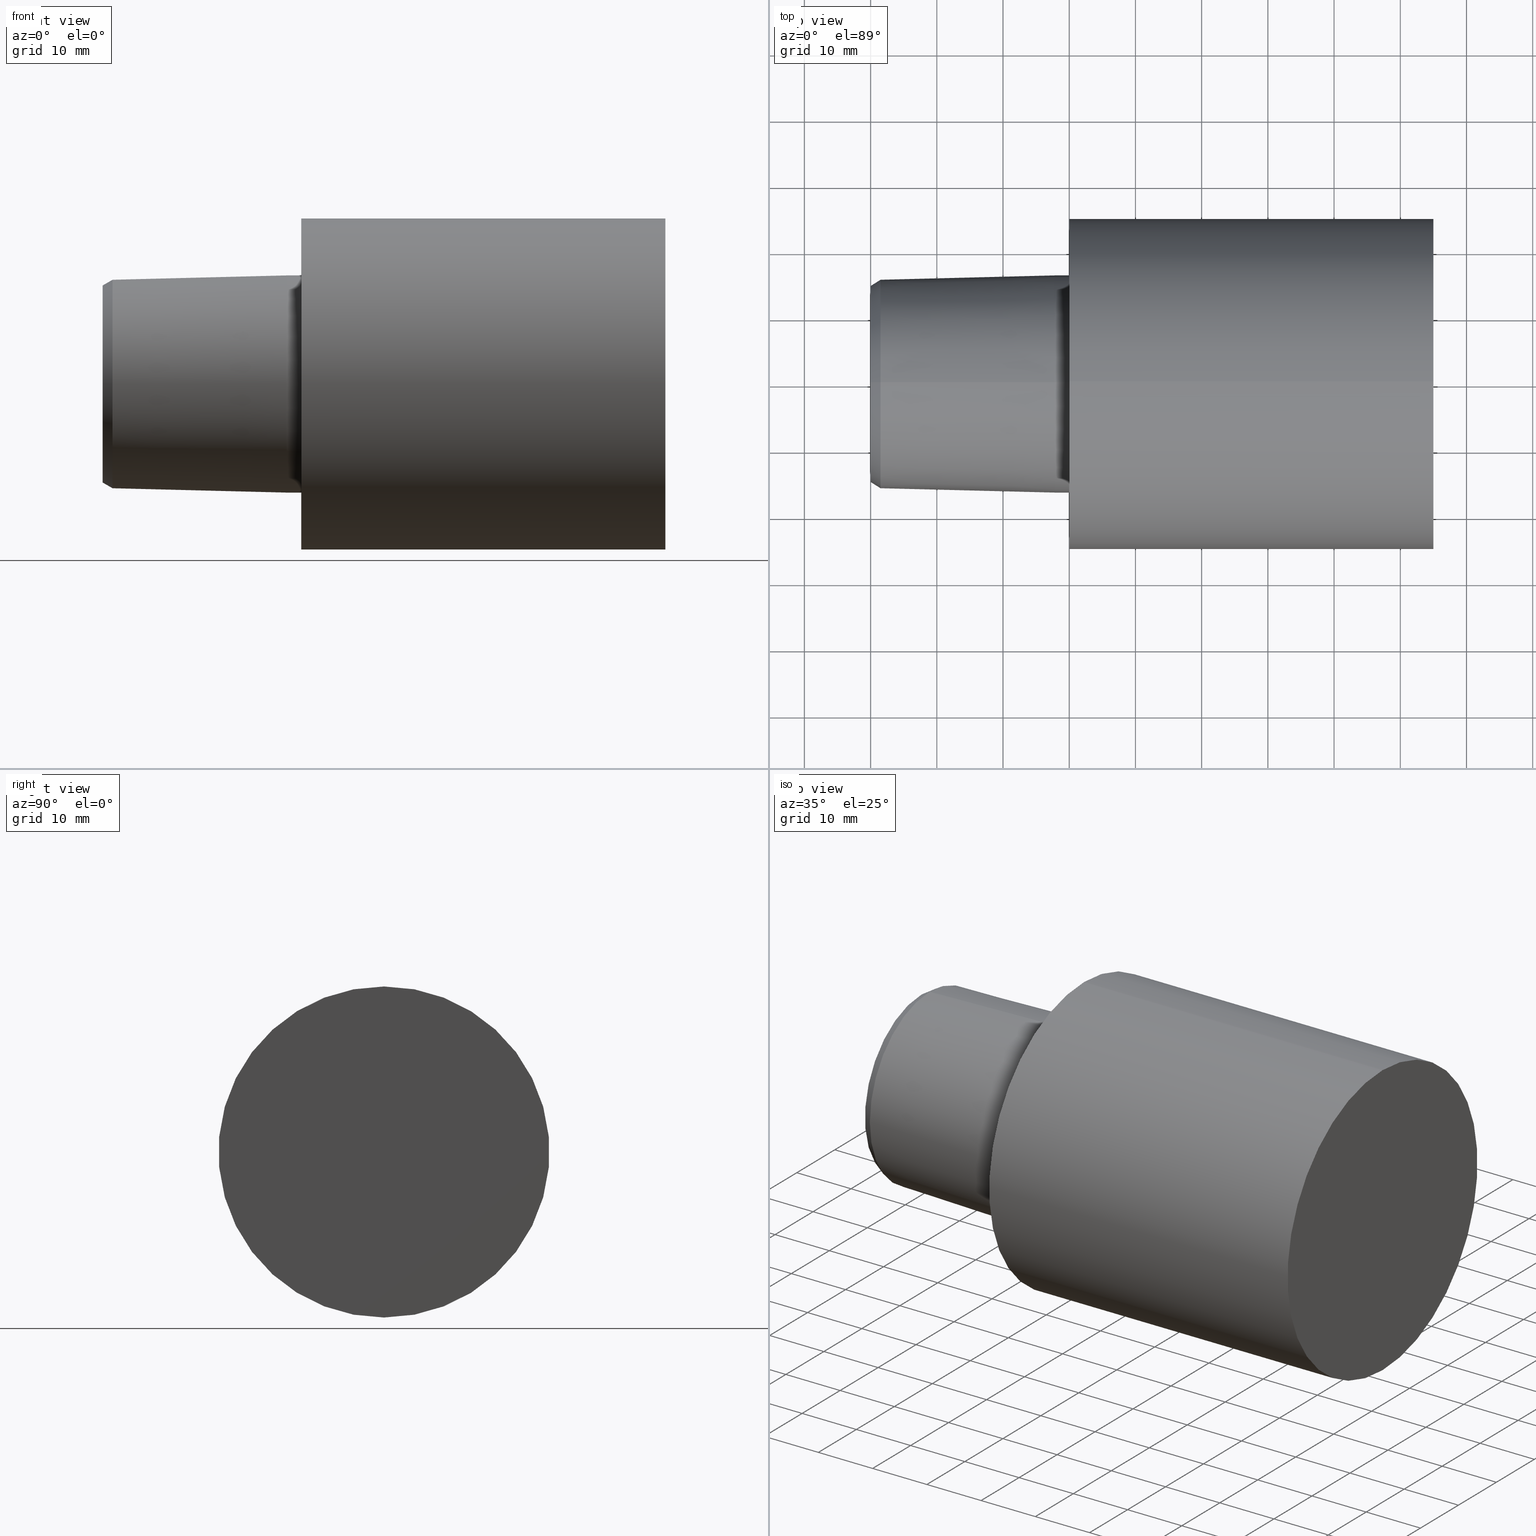
[diagram: canonical four-view strip — front | top / right | iso, engineering-drawing reading convention]
A machine part, canonical four-view strip (front | top / right | iso — engineering-drawing reading convention). The complete STEP part file that produces these views, byte-faithful:
ISO-10303-21;
HEADER;
FILE_DESCRIPTION (( 'STEP AP203' ),
    '1' );
FILE_NAME ('C5-S50-55.stp',
    '2022-03-11T15:29:14',
    ( '' ),
    ( '' ),
    'SwSTEP 2.0',
    'SolidWorks 2021',
    '' );
FILE_SCHEMA (( 'CONFIG_CONTROL_DESIGN' ));
ENDSEC;

DATA;
#1 = CC_DESIGN_PERSON_AND_ORGANIZATION_ASSIGNMENT ( #89, #285, ( #104 ) ) ;
#2 = FACE_OUTER_BOUND ( 'NONE', #256, .T. ) ;
#3 = PRODUCT ( 'C5-S50-55', 'C5-S50-55', '', ( #239 ) ) ;
#4 = LINE ( 'NONE', #271, #139 ) ;
#5 = DIRECTION ( 'NONE',  ( 0.000000000000000000, 0.000000000000000000, -1.000000000000000000 ) ) ;
#6 = CARTESIAN_POINT ( 'NONE',  ( 0.000000000000000000, 0.000000000000000000, -24.99999997449999967 ) ) ;
#7 = CARTESIAN_POINT ( 'NONE',  ( -29.99999996776130118, 1.874864587049208810E-15, 14.87641846198772733 ) ) ;
#8 = EDGE_CURVE ( 'NONE', #345, #283, #96, .T. ) ;
#9 = APPROVAL_STATUS ( 'not_yet_approved' ) ;
#10 = DESIGN_CONTEXT ( 'detailed design', #156, 'design' ) ;
#11 = AXIS2_PLACEMENT_3D ( 'NONE', #48, #258, #92 ) ;
#12 = COORDINATED_UNIVERSAL_TIME_OFFSET ( 6, 0, .BEHIND. ) ;
#13 = FACE_OUTER_BOUND ( 'NONE', #94, .T. ) ;
#14 = VECTOR ( 'NONE', #110, 1000.000000000000000 ) ;
#15 = DIRECTION ( 'NONE',  ( 1.000000000000000000, 0.000000000000000000, 0.000000000000000000 ) ) ;
#16 = CARTESIAN_POINT ( 'NONE',  ( -2.199937517756059613, 0.000000000000000000, -16.40000330327199762 ) ) ;
#17 = ORIENTED_EDGE ( 'NONE', *, *, #52, .F. ) ;
#18 = AXIS2_PLACEMENT_3D ( 'NONE', #56, #154, #50 ) ;
#19 = DIRECTION ( 'NONE',  ( 0.000000000000000000, 0.000000000000000000, -1.000000000000000000 ) ) ;
#20 = ORIENTED_EDGE ( 'NONE', *, *, #201, .T. ) ;
#21 = DIRECTION ( 'NONE',  ( 1.000000000000000000, 0.000000000000000000, 0.000000000000000000 ) ) ;
#22 = DIRECTION ( 'NONE',  ( 1.000000000000000000, 0.000000000000000000, 0.000000000000000000 ) ) ;
#23 = CC_DESIGN_PERSON_AND_ORGANIZATION_ASSIGNMENT ( #307, #257, ( #102 ) ) ;
#24 = AXIS2_PLACEMENT_3D ( 'NONE', #281, #313, #116 ) ;
#25 = CARTESIAN_POINT ( 'NONE',  ( 54.99999994390000069, 24.99999997449999967, 0.000000000000000000 ) ) ;
#26 = PRODUCT_DEFINITION_SHAPE ( 'NONE', 'NONE',  #104 ) ;
#27 = DIRECTION ( 'NONE',  ( 0.000000000000000000, 0.000000000000000000, -1.000000000000000000 ) ) ;
#28 = VERTEX_POINT ( 'NONE', #129 ) ;
#29 = CYLINDRICAL_SURFACE ( 'NONE', #262, 16.40000330327199762 ) ;
#30 =( LENGTH_UNIT ( ) NAMED_UNIT ( * ) SI_UNIT ( .MILLI., .METRE. ) );
#31 = AXIS2_PLACEMENT_3D ( 'NONE', #228, #292, #346 ) ;
#32 = DIRECTION ( 'NONE',  ( 1.000000000000000000, 0.000000000000000000, 0.000000000000000000 ) ) ;
#33 = CARTESIAN_POINT ( 'NONE',  ( -28.49999997092999848, 0.000000000000000000, 0.000000000000000000 ) ) ;
#34 = AXIS2_PLACEMENT_3D ( 'NONE', #158, #22, #323 ) ;
#35 = MANIFOLD_SOLID_BREP ( 'Scale1', #270 ) ;
#36 = COORDINATED_UNIVERSAL_TIME_OFFSET ( 6, 0, .BEHIND. ) ;
#37 = DIRECTION ( 'NONE',  ( 0.000000000000000000, 0.000000000000000000, -1.000000000000000000 ) ) ;
#38 = CC_DESIGN_DATE_AND_TIME_ASSIGNMENT ( #315, #43, ( #104 ) ) ;
#39 = VECTOR ( 'NONE', #252, 1000.000000000000000 ) ;
#40 = APPROVAL_ROLE ( '' ) ;
#41 = DIRECTION ( 'NONE',  ( 0.8660254037844387076, 0.000000000000000000, -0.4999999999999998890 ) ) ;
#42 = ORIENTED_EDGE ( 'NONE', *, *, #290, .T. ) ;
#43 = DATE_TIME_ROLE ( 'creation_date' ) ;
#44 = DIRECTION ( 'NONE',  ( 1.000000000000000000, 0.000000000000000000, 0.000000000000000000 ) ) ;
#45 = ORIENTED_EDGE ( 'NONE', *, *, #201, .F. ) ;
#46 = DIRECTION ( 'NONE',  ( 1.000000000000000000, 0.000000000000000000, 0.000000000000000000 ) ) ;
#47 = ORIENTED_EDGE ( 'NONE', *, *, #339, .T. ) ;
#48 = CARTESIAN_POINT ( 'NONE',  ( 54.99999994390000069, 0.000000000000000000, 0.000000000000000000 ) ) ;
#49 = EDGE_LOOP ( 'NONE', ( #321, #123, #172, #225 ) ) ;
#50 = DIRECTION ( 'NONE',  ( 1.000000000000000000, 0.000000000000000000, 0.000000000000000000 ) ) ;
#51 = ORIENTED_EDGE ( 'NONE', *, *, #79, .T. ) ;
#52 = EDGE_CURVE ( 'NONE', #297, #210, #4, .T. ) ;
#53 = CARTESIAN_POINT ( 'NONE',  ( -29.99999996776130118, 0.000000000000000000, 0.000000000000000000 ) ) ;
#54 = CARTESIAN_POINT ( 'NONE',  ( 0.000000000000000000, 0.000000000000000000, 0.000000000000000000 ) ) ;
#55 = AXIS2_PLACEMENT_3D ( 'NONE', #53, #244, #242 ) ;
#56 = CARTESIAN_POINT ( 'NONE',  ( 0.000000000000000000, 0.000000000000000000, 0.000000000000000000 ) ) ;
#57 = VERTEX_POINT ( 'NONE', #151 ) ;
#58 = ADVANCED_FACE ( 'NONE', ( #2 ), #355, .T. ) ;
#59 =( NAMED_UNIT ( * ) PLANE_ANGLE_UNIT ( ) SI_UNIT ( $, .RADIAN. ) );
#60 = AXIS2_PLACEMENT_3D ( 'NONE', #54, #236, #134 ) ;
#61 = CYLINDRICAL_SURFACE ( 'NONE', #322, 24.99999997449999967 ) ;
#62 = AXIS2_PLACEMENT_3D ( 'NONE', #119, #15, #260 ) ;
#63 = ADVANCED_FACE ( 'NONE', ( #83 ), #349, .T. ) ;
#64 = APPLICATION_CONTEXT ( 'configuration controlled 3d designs of mechanical parts and assemblies' ) ;
#65 = DIRECTION ( 'NONE',  ( 0.000000000000000000, 0.000000000000000000, -1.000000000000000000 ) ) ;
#66 = PLANE ( 'NONE',  #24 ) ;
#67 = LOCAL_TIME ( 9, 29, 14.00000000000000000, #12 ) ;
#68 = ADVANCED_FACE ( 'NONE', ( #136 ), #61, .T. ) ;
#69 = CIRCLE ( 'NONE', #336, 15.74244386394270734 ) ;
#70 = CARTESIAN_POINT ( 'NONE',  ( -2.199937517756059613, 0.000000000000000000, -16.40000330327199762 ) ) ;
#71 = VERTEX_POINT ( 'NONE', #108 ) ;
#72 = DIRECTION ( 'NONE',  ( 0.000000000000000000, 0.000000000000000000, -1.000000000000000000 ) ) ;
#73 = LINE ( 'NONE', #16, #235 ) ;
#74 = EDGE_LOOP ( 'NONE', ( #206, #261, #267, #259 ) ) ;
#75 = ORGANIZATION ( 'UNSPECIFIED', 'UNSPECIFIED', '' ) ;
#76 = CIRCLE ( 'NONE', #55, 14.87641846198772733 ) ;
#77 = EDGE_CURVE ( 'NONE', #160, #57, #299, .T. ) ;
#78 = EDGE_LOOP ( 'NONE', ( #294, #289 ) ) ;
#79 = EDGE_CURVE ( 'NONE', #283, #118, #265, .T. ) ;
#80 = LOCAL_TIME ( 9, 29, 14.00000000000000000, #114 ) ;
#81 = PERSON_AND_ORGANIZATION_ROLE ( 'design_owner' ) ;
#82 = VERTEX_POINT ( 'NONE', #7 ) ;
#83 = FACE_OUTER_BOUND ( 'NONE', #49, .T. ) ;
#84 = FACE_OUTER_BOUND ( 'NONE', #78, .T. ) ;
#85 = AXIS2_PLACEMENT_3D ( 'NONE', #202, #316, #72 ) ;
#86 = CC_DESIGN_PERSON_AND_ORGANIZATION_ASSIGNMENT ( #204, #223, ( #161 ) ) ;
#87 = DIRECTION ( 'NONE',  ( -1.000000000000000000, 0.000000000000000000, 0.000000000000000000 ) ) ;
#88 = ADVANCED_FACE ( 'NONE', ( #186 ), #29, .T. ) ;
#89 = PERSON_AND_ORGANIZATION ( #109, #75 ) ;
#90 = DATE_AND_TIME ( #280, #211 ) ;
#91 = FACE_OUTER_BOUND ( 'NONE', #317, .T. ) ;
#92 = DIRECTION ( 'NONE',  ( 0.000000000000000000, 0.000000000000000000, -1.000000000000000000 ) ) ;
#93 = LOCAL_TIME ( 9, 29, 14.00000000000000000, #193 ) ;
#94 = EDGE_LOOP ( 'NONE', ( #155, #222 ) ) ;
#95 = CARTESIAN_POINT ( 'NONE',  ( -28.49999997092999848, 1.927893348873434490E-15, 15.74244386394270734 ) ) ;
#96 = CIRCLE ( 'NONE', #60, 24.99999997449999967 ) ;
#97 = APPROVAL_STATUS ( 'not_yet_approved' ) ;
#98 = FACE_OUTER_BOUND ( 'NONE', #241, .T. ) ;
#99 = ORIENTED_EDGE ( 'NONE', *, *, #187, .T. ) ;
#100 = CARTESIAN_POINT ( 'NONE',  ( -28.49999997092999848, 0.000000000000000000, 0.000000000000000000 ) ) ;
#101 = ORIENTED_EDGE ( 'NONE', *, *, #218, .T. ) ;
#102 = SECURITY_CLASSIFICATION ( '', '', #350 ) ;
#103 = AXIS2_PLACEMENT_3D ( 'NONE', #143, #233, #179 ) ;
#104 = PRODUCT_DEFINITION ( 'UNKNOWN', '', #161, #10 ) ;
#105 = ORIENTED_EDGE ( 'NONE', *, *, #187, .F. ) ;
#106 = DIRECTION ( 'NONE',  ( 1.000000000000000000, 0.000000000000000000, 0.000000000000000000 ) ) ;
#107 = CC_DESIGN_DATE_AND_TIME_ASSIGNMENT ( #227, #220, ( #102 ) ) ;
#108 = CARTESIAN_POINT ( 'NONE',  ( 54.99999994390000069, 0.000000000000000000, -24.99999997449999967 ) ) ;
#109 = PERSON ( 'UNSPECIFIED', 'UNSPECIFIED', 'UNSPECIFIED', ('UNSPECIFIED'), ('UNSPECIFIED'), ('UNSPECIFIED') ) ;
#110 = DIRECTION ( 'NONE',  ( 1.000000000000000000, 0.000000000000000000, 0.000000000000000000 ) ) ;
#111 = EDGE_CURVE ( 'NONE', #245, #160, #188, .T. ) ;
#112 = LOCAL_TIME ( 9, 29, 14.00000000000000000, #36 ) ;
#113 = ADVANCED_FACE ( 'NONE', ( #214, #84 ), #189, .T. ) ;
#114 = COORDINATED_UNIVERSAL_TIME_OFFSET ( 6, 0, .BEHIND. ) ;
#115 = APPROVAL_STATUS ( 'not_yet_approved' ) ;
#116 = DIRECTION ( 'NONE',  ( 0.000000000000000000, 0.000000000000000000, 1.000000000000000000 ) ) ;
#117 = AXIS2_PLACEMENT_3D ( 'NONE', #302, #87, #331 ) ;
#118 = VERTEX_POINT ( 'NONE', #277 ) ;
#119 = CARTESIAN_POINT ( 'NONE',  ( 54.99999994390000069, 0.000000000000000000, 0.000000000000000000 ) ) ;
#120 = EDGE_LOOP ( 'NONE', ( #17, #99, #298, #263 ) ) ;
#121 = APPROVAL_ROLE ( '' ) ;
#122 = CARTESIAN_POINT ( 'NONE',  ( 0.000000000000000000, 0.000000000000000000, 0.000000000000000000 ) ) ;
#123 = ORIENTED_EDGE ( 'NONE', *, *, #52, .T. ) ;
#124 = LINE ( 'NONE', #171, #332 ) ;
#125 = ADVANCED_FACE ( 'NONE', ( #338 ), #164, .T. ) ;
#126 = FACE_OUTER_BOUND ( 'NONE', #120, .T. ) ;
#127 = ORIENTED_EDGE ( 'NONE', *, *, #249, .F. ) ;
#128 = LINE ( 'NONE', #295, #311 ) ;
#129 = CARTESIAN_POINT ( 'NONE',  ( -29.99999996776130118, 0.000000000000000000, -14.87641846198772733 ) ) ;
#130 = CIRCLE ( 'NONE', #31, 14.87641846198772733 ) ;
#131 = DIRECTION ( 'NONE',  ( 0.000000000000000000, 1.000000000000000000, 0.000000000000000000 ) ) ;
#132 = AXIS2_PLACEMENT_3D ( 'NONE', #33, #248, #138 ) ;
#133 = CARTESIAN_POINT ( 'NONE',  ( 54.99999994390000069, 3.061616994745535943E-15, 24.99999997449999967 ) ) ;
#134 = DIRECTION ( 'NONE',  ( 0.000000000000000000, 0.000000000000000000, -1.000000000000000000 ) ) ;
#135 = CIRCLE ( 'NONE', #180, 16.40000330327199762 ) ;
#136 = FACE_OUTER_BOUND ( 'NONE', #74, .T. ) ;
#137 = EDGE_CURVE ( 'NONE', #245, #210, #284, .T. ) ;
#138 = DIRECTION ( 'NONE',  ( 0.000000000000000000, 0.000000000000000000, -1.000000000000000000 ) ) ;
#139 = VECTOR ( 'NONE', #329, 999.9999999999998863 ) ;
#140 = PERSON_AND_ORGANIZATION_ROLE ( 'creator' ) ;
#141 = CARTESIAN_POINT ( 'NONE',  ( 0.000000000000000000, 0.000000000000000000, -16.40000330327199762 ) ) ;
#142 = CALENDAR_DATE ( 2022, 11, 3 ) ;
#143 = CARTESIAN_POINT ( 'NONE',  ( 54.99999994390000069, 0.000000000000000000, 0.000000000000000000 ) ) ;
#144 = ORIENTED_EDGE ( 'NONE', *, *, #163, .T. ) ;
#145 = PERSON_AND_ORGANIZATION ( #109, #75 ) ;
#146 = CARTESIAN_POINT ( 'NONE',  ( -2.199937517756059613, 0.000000000000000000, 0.000000000000000000 ) ) ;
#147 = CARTESIAN_POINT ( 'NONE',  ( -28.49999997092999848, 0.000000000000000000, -15.74244386394270734 ) ) ;
#148 = DIRECTION ( 'NONE',  ( 0.9996875914402667540, 0.000000000000000000, -0.02499438977767824352 ) ) ;
#149 = ORIENTED_EDGE ( 'NONE', *, *, #334, .F. ) ;
#150 = CARTESIAN_POINT ( 'NONE',  ( 54.99999994390000069, 0.000000000000000000, 0.000000000000000000 ) ) ;
#151 = CARTESIAN_POINT ( 'NONE',  ( 0.000000000000000000, 2.008421155135807723E-15, 16.40000330327199762 ) ) ;
#152 = CC_DESIGN_APPROVAL ( #153, ( #161 ) ) ;
#153 = APPROVAL ( #115, 'UNSPECIFIED' ) ;
#154 = DIRECTION ( 'NONE',  ( 0.000000000000000000, 0.000000000000000000, 1.000000000000000000 ) ) ;
#155 = ORIENTED_EDGE ( 'NONE', *, *, #290, .F. ) ;
#156 = APPLICATION_CONTEXT ( 'configuration controlled 3d designs of mechanical parts and assemblies' ) ;
#157 = PERSON_AND_ORGANIZATION ( #109, #75 ) ;
#158 = CARTESIAN_POINT ( 'NONE',  ( 0.000000000000000000, 0.000000000000000000, 0.000000000000000000 ) ) ;
#159 = ADVANCED_FACE ( 'NONE', ( #126 ), #305, .T. ) ;
#160 = VERTEX_POINT ( 'NONE', #141 ) ;
#161 = PRODUCT_DEFINITION_FORMATION_WITH_SPECIFIED_SOURCE ( 'ANY', '', #3, .NOT_KNOWN. ) ;
#162 = CIRCLE ( 'NONE', #103, 24.99999997449999967 ) ;
#163 = EDGE_CURVE ( 'NONE', #210, #245, #335, .T. ) ;
#164 = CONICAL_SURFACE ( 'NONE', #132, 15.74244386394270734, 0.5235987755982987046 ) ;
#165 = APPROVAL ( #97, 'UNSPECIFIED' ) ;
#166 = CC_DESIGN_APPROVAL ( #246, ( #102 ) ) ;
#167 = CALENDAR_DATE ( 2022, 11, 3 ) ;
#168 = CYLINDRICAL_SURFACE ( 'NONE', #62, 16.40000330327199762 ) ;
#169 = ADVANCED_FACE ( 'NONE', ( #98 ), #190, .T. ) ;
#170 = APPROVAL_DATE_TIME ( #229, #165 ) ;
#171 = CARTESIAN_POINT ( 'NONE',  ( -28.49999997092999848, 0.000000000000000000, -15.74244386394270734 ) ) ;
#172 = ORIENTED_EDGE ( 'NONE', *, *, #137, .F. ) ;
#173 = FACE_OUTER_BOUND ( 'NONE', #234, .T. ) ;
#174 = AXIS2_PLACEMENT_3D ( 'NONE', #308, #44, #37 ) ;
#175 = ADVANCED_FACE ( 'NONE', ( #91 ), #168, .T. ) ;
#176 = PERSON_AND_ORGANIZATION ( #109, #75 ) ;
#177 = DIRECTION ( 'NONE',  ( 1.000000000000000000, 0.000000000000000000, 0.000000000000000000 ) ) ;
#178 = ORIENTED_EDGE ( 'NONE', *, *, #249, .T. ) ;
#179 = DIRECTION ( 'NONE',  ( 0.000000000000000000, 0.000000000000000000, -1.000000000000000000 ) ) ;
#180 = AXIS2_PLACEMENT_3D ( 'NONE', #122, #46, #65 ) ;
#181 = ORIENTED_EDGE ( 'NONE', *, *, #111, .T. ) ;
#182 = DIRECTION ( 'NONE',  ( 1.000000000000000000, 0.000000000000000000, 0.000000000000000000 ) ) ;
#183 = CC_DESIGN_PERSON_AND_ORGANIZATION_ASSIGNMENT ( #145, #140, ( #161 ) ) ;
#184 = EDGE_LOOP ( 'NONE', ( #45, #144, #181, #347 ) ) ;
#185 = APPLICATION_PROTOCOL_DEFINITION ( 'international standard', 'config_control_design', 1994, #156 ) ;
#186 = FACE_OUTER_BOUND ( 'NONE', #184, .T. ) ;
#187 = EDGE_CURVE ( 'NONE', #297, #319, #69, .T. ) ;
#188 = LINE ( 'NONE', #274, #14 ) ;
#189 = PLANE ( 'NONE',  #117 ) ;
#190 = CONICAL_SURFACE ( 'NONE', #275, 15.74244386394270734, 0.5235987755982987046 ) ;
#191 = AXIS2_PLACEMENT_3D ( 'NONE', #25, #300, #131 ) ;
#192 = UNCERTAINTY_MEASURE_WITH_UNIT (LENGTH_MEASURE( 1.000000000000000082E-05 ), #30, 'distance_accuracy_value', 'NONE');
#193 = COORDINATED_UNIVERSAL_TIME_OFFSET ( 6, 0, .BEHIND. ) ;
#194 = COORDINATED_UNIVERSAL_TIME_OFFSET ( 6, 0, .BEHIND. ) ;
#195 = LINE ( 'NONE', #255, #39 ) ;
#196 = ORIENTED_EDGE ( 'NONE', *, *, #348, .T. ) ;
#197 = SHAPE_DEFINITION_REPRESENTATION ( #26, #320 ) ;
#198 = AXIS2_PLACEMENT_3D ( 'NONE', #353, #351, #230 ) ;
#199 = DIRECTION ( 'NONE',  ( 0.000000000000000000, 0.000000000000000000, -1.000000000000000000 ) ) ;
#200 = ORIENTED_EDGE ( 'NONE', *, *, #339, .F. ) ;
#201 = EDGE_CURVE ( 'NONE', #210, #57, #195, .T. ) ;
#202 = CARTESIAN_POINT ( 'NONE',  ( 0.000000000000000000, 0.000000000000000000, 0.000000000000000000 ) ) ;
#203 = EDGE_LOOP ( 'NONE', ( #42, #47, #149, #127 ) ) ;
#204 = PERSON_AND_ORGANIZATION ( #109, #75 ) ;
#205 = DIRECTION ( 'NONE',  ( 1.000000000000000000, 0.000000000000000000, 0.000000000000000000 ) ) ;
#206 = ORIENTED_EDGE ( 'NONE', *, *, #79, .F. ) ;
#207 = CC_DESIGN_SECURITY_CLASSIFICATION ( #102, ( #161 ) ) ;
#208 = AXIS2_PLACEMENT_3D ( 'NONE', #318, #182, #27 ) ;
#209 = PERSON_AND_ORGANIZATION ( #109, #75 ) ;
#210 = VERTEX_POINT ( 'NONE', #288 ) ;
#211 = LOCAL_TIME ( 9, 29, 14.00000000000000000, #194 ) ;
#212 = DIRECTION ( 'NONE',  ( 1.000000000000000000, 0.000000000000000000, 0.000000000000000000 ) ) ;
#213 = CC_DESIGN_PERSON_AND_ORGANIZATION_ASSIGNMENT ( #209, #81, ( #3 ) ) ;
#214 = FACE_BOUND ( 'NONE', #253, .T. ) ;
#215 = CIRCLE ( 'NONE', #85, 24.99999997449999967 ) ;
#216 = DIRECTION ( 'NONE',  ( 1.000000000000000000, 0.000000000000000000, 0.000000000000000000 ) ) ;
#217 = AXIS2_PLACEMENT_3D ( 'NONE', #146, #177, #19 ) ;
#218 = EDGE_CURVE ( 'NONE', #57, #160, #135, .T. ) ;
#219 = VECTOR ( 'NONE', #341, 1000.000000000000000 ) ;
#220 = DATE_TIME_ROLE ( 'classification_date' ) ;
#221 = LINE ( 'NONE', #282, #219 ) ;
#222 = ORIENTED_EDGE ( 'NONE', *, *, #348, .F. ) ;
#223 = PERSON_AND_ORGANIZATION_ROLE ( 'design_supplier' ) ;
#224 = CARTESIAN_POINT ( 'NONE',  ( -28.49999997092999848, 0.000000000000000000, 0.000000000000000000 ) ) ;
#225 = ORIENTED_EDGE ( 'NONE', *, *, #279, .F. ) ;
#226 = APPROVAL_PERSON_ORGANIZATION ( #157, #165, #40 ) ;
#227 = DATE_AND_TIME ( #343, #80 ) ;
#228 = CARTESIAN_POINT ( 'NONE',  ( -29.99999996776130118, 0.000000000000000000, 0.000000000000000000 ) ) ;
#229 = DATE_AND_TIME ( #142, #67 ) ;
#230 = DIRECTION ( 'NONE',  ( 0.000000000000000000, 0.000000000000000000, -1.000000000000000000 ) ) ;
#231 = VECTOR ( 'NONE', #326, 1000.000000000000000 ) ;
#232 = ORIENTED_EDGE ( 'NONE', *, *, #137, .T. ) ;
#233 = DIRECTION ( 'NONE',  ( 1.000000000000000000, 0.000000000000000000, 0.000000000000000000 ) ) ;
#234 = EDGE_LOOP ( 'NONE', ( #287, #51, #352, #309 ) ) ;
#235 = VECTOR ( 'NONE', #148, 999.9999999999998863 ) ;
#236 = DIRECTION ( 'NONE',  ( 1.000000000000000000, 0.000000000000000000, 0.000000000000000000 ) ) ;
#237 = DIRECTION ( 'NONE',  ( 0.000000000000000000, 0.000000000000000000, -1.000000000000000000 ) ) ;
#238 = AXIS2_PLACEMENT_3D ( 'NONE', #269, #106, #237 ) ;
#239 = MECHANICAL_CONTEXT ( 'NONE', #64, 'mechanical' ) ;
#240 = ADVANCED_FACE ( 'NONE', ( #13 ), #66, .T. ) ;
#241 = EDGE_LOOP ( 'NONE', ( #200, #196, #178, #105 ) ) ;
#242 = DIRECTION ( 'NONE',  ( 0.000000000000000000, 0.000000000000000000, -1.000000000000000000 ) ) ;
#243 = CARTESIAN_POINT ( 'NONE',  ( 54.99999994390000069, 0.000000000000000000, 0.000000000000000000 ) ) ;
#244 = DIRECTION ( 'NONE',  ( 1.000000000000000000, 0.000000000000000000, 0.000000000000000000 ) ) ;
#245 = VERTEX_POINT ( 'NONE', #70 ) ;
#246 = APPROVAL ( #9, 'UNSPECIFIED' ) ;
#247 = CARTESIAN_POINT ( 'NONE',  ( -2.199937517756059613, 0.000000000000000000, 0.000000000000000000 ) ) ;
#248 = DIRECTION ( 'NONE',  ( 1.000000000000000000, 0.000000000000000000, 0.000000000000000000 ) ) ;
#249 = EDGE_CURVE ( 'NONE', #28, #319, #124, .T. ) ;
#250 = PERSON_AND_ORGANIZATION ( #109, #75 ) ;
#251 = APPROVAL_DATE_TIME ( #90, #153 ) ;
#252 = DIRECTION ( 'NONE',  ( 1.000000000000000000, 0.000000000000000000, 0.000000000000000000 ) ) ;
#253 = EDGE_LOOP ( 'NONE', ( #293, #101 ) ) ;
#254 = AXIS2_PLACEMENT_3D ( 'NONE', #247, #216, #333 ) ;
#255 = CARTESIAN_POINT ( 'NONE',  ( 54.99999994390000069, 2.008421155135807723E-15, 16.40000330327199762 ) ) ;
#256 = EDGE_LOOP ( 'NONE', ( #296, #342 ) ) ;
#257 = PERSON_AND_ORGANIZATION_ROLE ( 'classification_officer' ) ;
#258 = DIRECTION ( 'NONE',  ( 1.000000000000000000, 0.000000000000000000, 0.000000000000000000 ) ) ;
#259 = ORIENTED_EDGE ( 'NONE', *, *, #328, .F. ) ;
#260 = DIRECTION ( 'NONE',  ( 0.000000000000000000, 0.000000000000000000, -1.000000000000000000 ) ) ;
#261 = ORIENTED_EDGE ( 'NONE', *, *, #304, .T. ) ;
#262 = AXIS2_PLACEMENT_3D ( 'NONE', #243, #212, #327 ) ;
#263 = ORIENTED_EDGE ( 'NONE', *, *, #163, .F. ) ;
#264 = EDGE_CURVE ( 'NONE', #345, #71, #221, .T. ) ;
#265 = LINE ( 'NONE', #133, #231 ) ;
#266 = CIRCLE ( 'NONE', #208, 15.74244386394270734 ) ;
#267 = ORIENTED_EDGE ( 'NONE', *, *, #264, .T. ) ;
#268 = APPLICATION_PROTOCOL_DEFINITION ( 'international standard', 'config_control_design', 1994, #64 ) ;
#269 = CARTESIAN_POINT ( 'NONE',  ( -2.199937517756059613, 0.000000000000000000, 0.000000000000000000 ) ) ;
#270 = CLOSED_SHELL ( 'NONE', ( #58, #68, #113, #88, #159, #169, #240, #125, #63, #175, #278 ) ) ;
#271 = CARTESIAN_POINT ( 'NONE',  ( -2.199937517756059613, 2.008421155135807723E-15, 16.40000330327199762 ) ) ;
#272 =( NAMED_UNIT ( * ) SI_UNIT ( $, .STERADIAN. ) SOLID_ANGLE_UNIT ( ) );
#273 = CC_DESIGN_APPROVAL ( #165, ( #104 ) ) ;
#274 = CARTESIAN_POINT ( 'NONE',  ( 54.99999994390000069, 0.000000000000000000, -16.40000330327199762 ) ) ;
#275 = AXIS2_PLACEMENT_3D ( 'NONE', #100, #205, #306 ) ;
#276 = EDGE_CURVE ( 'NONE', #71, #118, #162, .T. ) ;
#277 = CARTESIAN_POINT ( 'NONE',  ( 54.99999994390000069, 3.061616994745535943E-15, 24.99999997449999967 ) ) ;
#278 = ADVANCED_FACE ( 'NONE', ( #173 ), #344, .T. ) ;
#279 = EDGE_CURVE ( 'NONE', #319, #245, #73, .T. ) ;
#280 = CALENDAR_DATE ( 2022, 11, 3 ) ;
#281 = CARTESIAN_POINT ( 'NONE',  ( -29.99999996776130118, 0.000000000000000000, 0.000000000000000000 ) ) ;
#282 = CARTESIAN_POINT ( 'NONE',  ( 54.99999994390000069, 0.000000000000000000, -24.99999997449999967 ) ) ;
#283 = VERTEX_POINT ( 'NONE', #286 ) ;
#284 = CIRCLE ( 'NONE', #254, 16.40000330327199762 ) ;
#285 = PERSON_AND_ORGANIZATION_ROLE ( 'creator' ) ;
#286 = CARTESIAN_POINT ( 'NONE',  ( 0.000000000000000000, 3.061616994745535943E-15, 24.99999997449999967 ) ) ;
#287 = ORIENTED_EDGE ( 'NONE', *, *, #8, .T. ) ;
#288 = CARTESIAN_POINT ( 'NONE',  ( -2.199937517756059613, 2.008421155135807723E-15, 16.40000330327199762 ) ) ;
#289 = ORIENTED_EDGE ( 'NONE', *, *, #304, .F. ) ;
#290 = EDGE_CURVE ( 'NONE', #28, #82, #130, .T. ) ;
#291 = DATE_AND_TIME ( #337, #93 ) ;
#292 = DIRECTION ( 'NONE',  ( 1.000000000000000000, 0.000000000000000000, 0.000000000000000000 ) ) ;
#293 = ORIENTED_EDGE ( 'NONE', *, *, #77, .T. ) ;
#294 = ORIENTED_EDGE ( 'NONE', *, *, #8, .F. ) ;
#295 = CARTESIAN_POINT ( 'NONE',  ( -28.49999997092999848, 1.927893348873434490E-15, 15.74244386394270734 ) ) ;
#296 = ORIENTED_EDGE ( 'NONE', *, *, #276, .T. ) ;
#297 = VERTEX_POINT ( 'NONE', #95 ) ;
#298 = ORIENTED_EDGE ( 'NONE', *, *, #279, .T. ) ;
#299 = CIRCLE ( 'NONE', #34, 16.40000330327199762 ) ;
#300 = DIRECTION ( 'NONE',  ( 1.000000000000000000, 0.000000000000000000, 0.000000000000000000 ) ) ;
#301 = APPROVAL_PERSON_ORGANIZATION ( #176, #246, #340 ) ;
#302 = CARTESIAN_POINT ( 'NONE',  ( 0.000000000000000000, 24.99999997449999967, 0.000000000000000000 ) ) ;
#303 = CIRCLE ( 'NONE', #198, 24.99999997449999967 ) ;
#304 = EDGE_CURVE ( 'NONE', #283, #345, #215, .T. ) ;
#305 = CONICAL_SURFACE ( 'NONE', #174, 16.40000330327199762, 0.02499699292341668252 ) ;
#306 = DIRECTION ( 'NONE',  ( 0.000000000000000000, 0.000000000000000000, -1.000000000000000000 ) ) ;
#307 = PERSON_AND_ORGANIZATION ( #109, #75 ) ;
#308 = CARTESIAN_POINT ( 'NONE',  ( -2.199937517756059613, 0.000000000000000000, 0.000000000000000000 ) ) ;
#309 = ORIENTED_EDGE ( 'NONE', *, *, #264, .F. ) ;
#310 = APPROVAL_PERSON_ORGANIZATION ( #250, #153, #121 ) ;
#311 = VECTOR ( 'NONE', #325, 1000.000000000000000 ) ;
#312 = APPROVAL_DATE_TIME ( #291, #246 ) ;
#313 = DIRECTION ( 'NONE',  ( -1.000000000000000000, 0.000000000000000000, 0.000000000000000000 ) ) ;
#314 = ORIENTED_EDGE ( 'NONE', *, *, #111, .F. ) ;
#315 = DATE_AND_TIME ( #167, #112 ) ;
#316 = DIRECTION ( 'NONE',  ( 1.000000000000000000, 0.000000000000000000, 0.000000000000000000 ) ) ;
#317 = EDGE_LOOP ( 'NONE', ( #232, #20, #354, #314 ) ) ;
#318 = CARTESIAN_POINT ( 'NONE',  ( -28.49999997092999848, 0.000000000000000000, 0.000000000000000000 ) ) ;
#319 = VERTEX_POINT ( 'NONE', #147 ) ;
#320 = ADVANCED_BREP_SHAPE_REPRESENTATION ( 'C5-S50-55', ( #35, #18 ), #330 ) ;
#321 = ORIENTED_EDGE ( 'NONE', *, *, #334, .T. ) ;
#322 = AXIS2_PLACEMENT_3D ( 'NONE', #150, #32, #5 ) ;
#323 = DIRECTION ( 'NONE',  ( 0.000000000000000000, 0.000000000000000000, -1.000000000000000000 ) ) ;
#324 = PRODUCT_RELATED_PRODUCT_CATEGORY ( 'detail', '', ( #3 ) ) ;
#325 = DIRECTION ( 'NONE',  ( 0.8660254037844387076, 6.123233995736748780E-17, 0.4999999999999998890 ) ) ;
#326 = DIRECTION ( 'NONE',  ( 1.000000000000000000, 0.000000000000000000, 0.000000000000000000 ) ) ;
#327 = DIRECTION ( 'NONE',  ( 0.000000000000000000, 0.000000000000000000, -1.000000000000000000 ) ) ;
#328 = EDGE_CURVE ( 'NONE', #118, #71, #303, .T. ) ;
#329 = DIRECTION ( 'NONE',  ( 0.9996875914402667540, 3.060929943787498310E-18, 0.02499438977767824352 ) ) ;
#330 =( GEOMETRIC_REPRESENTATION_CONTEXT ( 3 ) GLOBAL_UNCERTAINTY_ASSIGNED_CONTEXT ( ( #192 ) ) GLOBAL_UNIT_ASSIGNED_CONTEXT ( ( #30, #59, #272 ) ) REPRESENTATION_CONTEXT ( 'NONE', 'WORKASPACE' ) );
#331 = DIRECTION ( 'NONE',  ( 0.000000000000000000, 0.000000000000000000, 1.000000000000000000 ) ) ;
#332 = VECTOR ( 'NONE', #41, 1000.000000000000000 ) ;
#333 = DIRECTION ( 'NONE',  ( 0.000000000000000000, 0.000000000000000000, -1.000000000000000000 ) ) ;
#334 = EDGE_CURVE ( 'NONE', #319, #297, #266, .T. ) ;
#335 = CIRCLE ( 'NONE', #217, 16.40000330327199762 ) ;
#336 = AXIS2_PLACEMENT_3D ( 'NONE', #224, #21, #199 ) ;
#337 = CALENDAR_DATE ( 2022, 11, 3 ) ;
#338 = FACE_OUTER_BOUND ( 'NONE', #203, .T. ) ;
#339 = EDGE_CURVE ( 'NONE', #82, #297, #128, .T. ) ;
#340 = APPROVAL_ROLE ( '' ) ;
#341 = DIRECTION ( 'NONE',  ( 1.000000000000000000, 0.000000000000000000, 0.000000000000000000 ) ) ;
#342 = ORIENTED_EDGE ( 'NONE', *, *, #328, .T. ) ;
#343 = CALENDAR_DATE ( 2022, 11, 3 ) ;
#344 = CYLINDRICAL_SURFACE ( 'NONE', #11, 24.99999997449999967 ) ;
#345 = VERTEX_POINT ( 'NONE', #6 ) ;
#346 = DIRECTION ( 'NONE',  ( 0.000000000000000000, 0.000000000000000000, -1.000000000000000000 ) ) ;
#347 = ORIENTED_EDGE ( 'NONE', *, *, #218, .F. ) ;
#348 = EDGE_CURVE ( 'NONE', #82, #28, #76, .T. ) ;
#349 = CONICAL_SURFACE ( 'NONE', #238, 16.40000330327199762, 0.02499699292341668252 ) ;
#350 = SECURITY_CLASSIFICATION_LEVEL ( 'unclassified' ) ;
#351 = DIRECTION ( 'NONE',  ( 1.000000000000000000, 0.000000000000000000, 0.000000000000000000 ) ) ;
#352 = ORIENTED_EDGE ( 'NONE', *, *, #276, .F. ) ;
#353 = CARTESIAN_POINT ( 'NONE',  ( 54.99999994390000069, 0.000000000000000000, 0.000000000000000000 ) ) ;
#354 = ORIENTED_EDGE ( 'NONE', *, *, #77, .F. ) ;
#355 = PLANE ( 'NONE',  #191 ) ;
ENDSEC;
END-ISO-10303-21;
